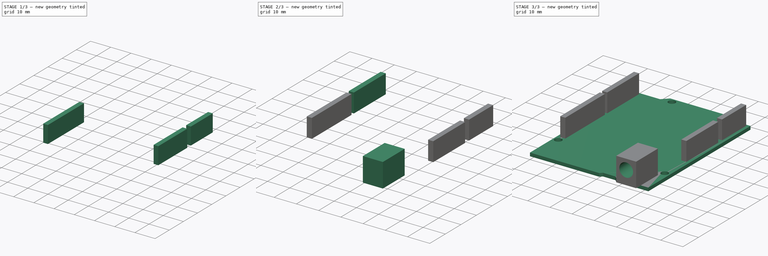
[diagram: build sequence overview — one tinted view per stage of 3, left to right]
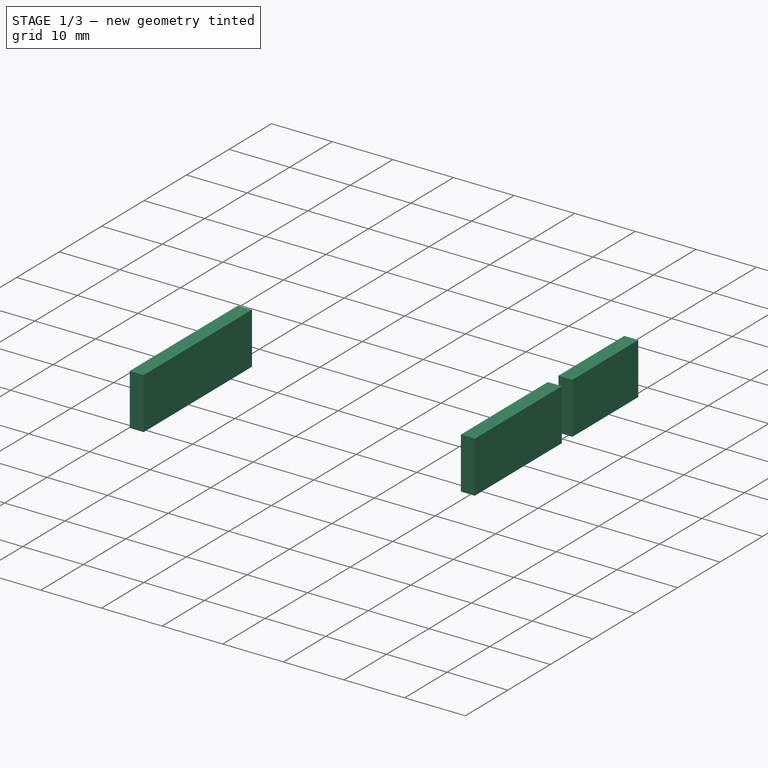
[diagram: stage 1 of 3 — iso view after this stage's code; geometry added in this stage tinted green]
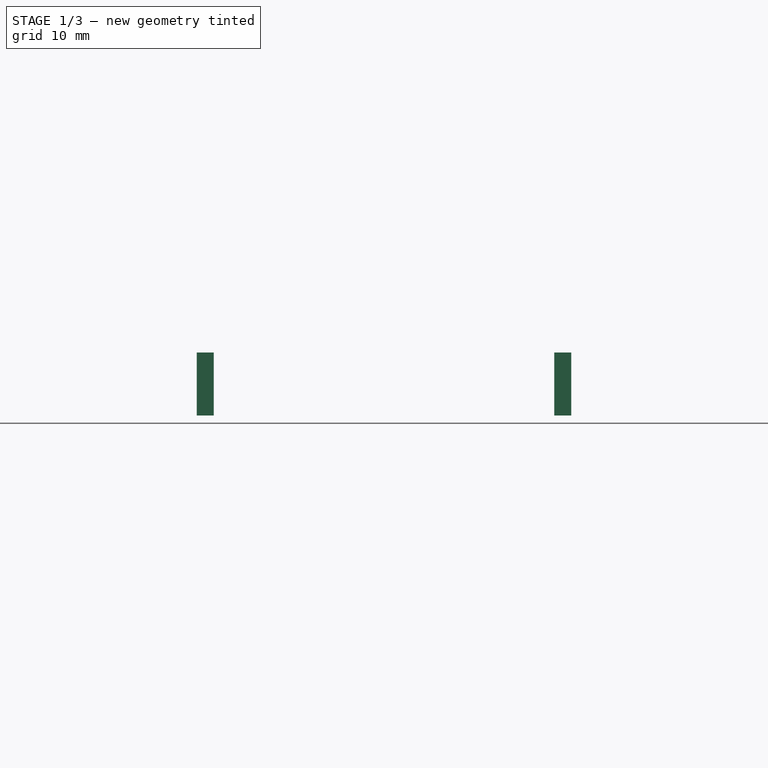
[diagram: stage 1 of 3 — front view after this stage's code; geometry added in this stage tinted green]
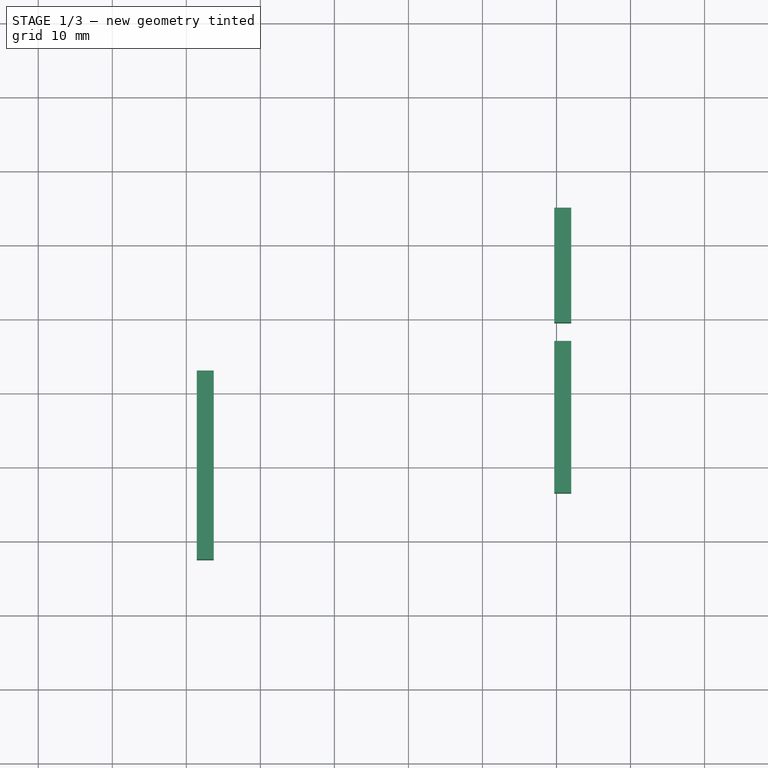
[diagram: stage 1 of 3 — top view after this stage's code; geometry added in this stage tinted green]
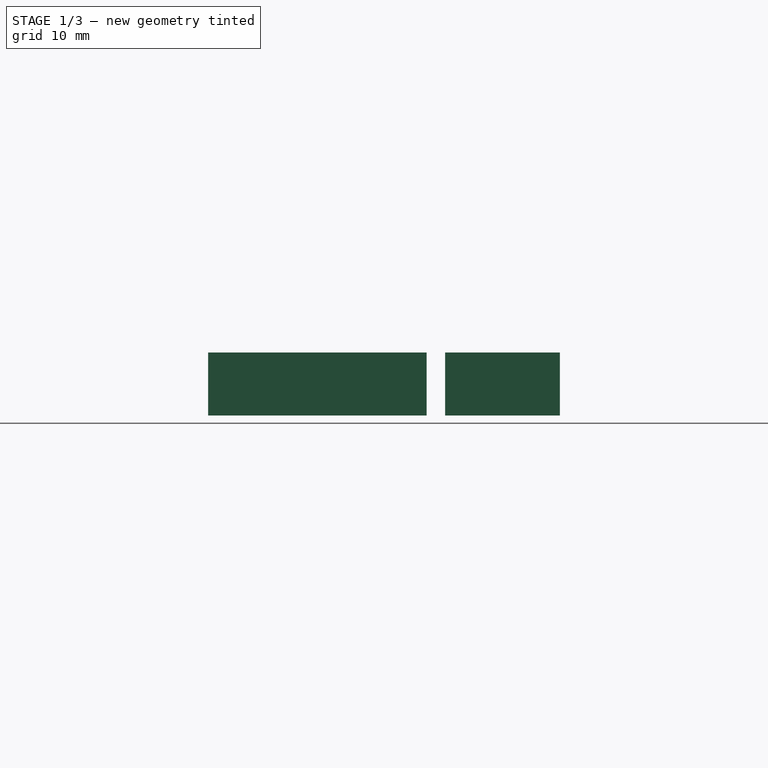
[diagram: stage 1 of 3 — right view after this stage's code; geometry added in this stage tinted green]
FCSTD DOCUMENT  (FreeCAD 0.19R24276 (Git))
Label: Adafruit_MetroM4
License: All rights reserved
LicenseURL: http://en.wikipedia.org/wiki/All_rights_reserved
objects: Sketcher::SketchObject×8, PartDesign::Pad×6, PartDesign::Body×6, PartDesign::Pocket×2, App::Part×1
note: 30 computed .brp shape members not serialized (recipe doc carries the construction recipe); baked Part::Feature solids carry a one-line shape summary decoded from their .brp

FEATURE [PartDesign::Body] Body002  label="Header1"
  Group = -> [Sketch004,Pad002]
  Origin = -> Origin003
  Tip = -> Pad002
FEATURE [Sketcher::SketchObject] Sketch005
  FullyConstrained = true
  MapMode = 5
  Support = -> [XY_Plane004]
  sketch-geometry (4):
    g0: LineSegment StartX=1.4 StartY=43 StartZ=0 EndX=3.7 EndY=43 EndZ=0
    g1: LineSegment StartX=3.7 StartY=43 StartZ=0 EndX=3.7 EndY=17.5 EndZ=0
    g2: LineSegment StartX=3.7 StartY=17.5 StartZ=0 EndX=1.4 EndY=17.5 EndZ=0
    g3: LineSegment StartX=1.4 StartY=17.5 StartZ=0 EndX=1.4 EndY=43 EndZ=0
  constraints (12):
    c: Coincident(g0,g1)
    c: Coincident(g1,g2)
    c: Coincident(g2,g3)
    c: Coincident(g3,g0)
    c: Horizontal(g0)
    c: Horizontal(g2)
    c: Vertical(g1)
    c: Vertical(g3)
    c: Distance(g0) = 2.3
    c: DistanceX(g-1,g0) = 3.7
    c: DistanceY(g-1,g0) = 43
    c: Distance(g3) = 25.5
FEATURE [PartDesign::Pad] Pad003
  Direction = (1,1,1)
  Length = 8.5
  Length2 = 100
  Profile = -> Sketch005
  Type = 0
FEATURE [PartDesign::Body] Body003  label="Header2"
  Group = -> [Sketch005,Pad003]
  Origin = -> Origin004
  Tip = -> Pad003
FEATURE [Sketcher::SketchObject] Sketch006
  FullyConstrained = true
  MapMode = 5
  Support = -> [XY_Plane005]
  sketch-geometry (4):
    g0: LineSegment StartX=49.7 StartY=65 StartZ=0 EndX=52 EndY=65 EndZ=0
    g1: LineSegment StartX=52 StartY=65 StartZ=0 EndX=52 EndY=49.5 EndZ=0
    g2: LineSegment StartX=52 StartY=49.5 StartZ=0 EndX=49.7 EndY=49.5 EndZ=0
    g3: LineSegment StartX=49.7 StartY=49.5 StartZ=0 EndX=49.7 EndY=65 EndZ=0
  constraints (12):
    c: Coincident(g0,g1)
    c: Coincident(g1,g2)
    c: Coincident(g2,g3)
    c: Coincident(g3,g0)
    c: Horizontal(g0)
    c: Horizontal(g2)
    c: Vertical(g1)
    c: Vertical(g3)
    c: Distance(g2) = 2.3
    c: Distance(g1) = 15.5
    c: DistanceY(g-1,g0) = 65
    c: DistanceX(g-1,g0) = 52
FEATURE [PartDesign::Pad] Pad004
  Direction = (1,1,1)
  Length = 8.5
  Length2 = 100
  Profile = -> Sketch006
  Type = 0
FEATURE [PartDesign::Body] Body004  label="Header3"
  Group = -> [Sketch006,Pad004]
  Origin = -> Origin005
  Tip = -> Pad004
FEATURE [Sketcher::SketchObject] Sketch007
  FullyConstrained = true
  MapMode = 5
  Support = -> [XY_Plane006]
  sketch-geometry (4):
    g0: LineSegment StartX=49.7 StartY=47 StartZ=0 EndX=52 EndY=47 EndZ=0
    g1: LineSegment StartX=52 StartY=47 StartZ=0 EndX=52 EndY=26.5 EndZ=0
    g2: LineSegment StartX=52 StartY=26.5 StartZ=0 EndX=49.7 EndY=26.5 EndZ=0
    g3: LineSegment StartX=49.7 StartY=26.5 StartZ=0 EndX=49.7 EndY=47 EndZ=0
  constraints (12):
    c: Coincident(g0,g1)
    c: Coincident(g1,g2)
    c: Coincident(g2,g3)
    c: Coincident(g3,g0)
    c: Horizontal(g0)
    c: Horizontal(g2)
    c: Vertical(g1)
    c: Vertical(g3)
    c: DistanceX(g0,g0) = 2.3
    c: DistanceY(g1,g0) = 20.5
    c: DistanceX(g-1,g0) = 52
    c: DistanceY(g-1,g0) = 47
FEATURE [PartDesign::Pad] Pad005
  Direction = (1,1,1)
  Length = 8.5
  Length2 = 100
  Profile = -> Sketch007
  Type = 0
FEATURE [PartDesign::Body] Body005  label="Header4"
  Group = -> [Sketch007,Pad005]
  Origin = -> Origin006
  Tip = -> Pad005
FEATURE [App::Part] Part  label="MetroM4"
  Group = -> [Body,Body001,Body002,Body003,Body004,Body005]
  Origin = -> Origin
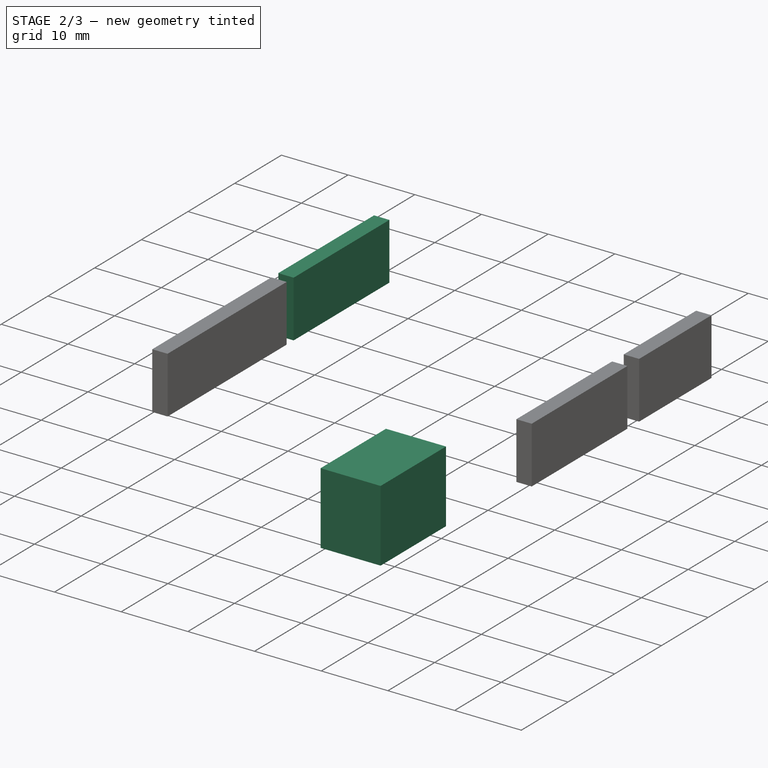
[diagram: stage 2 of 3 — iso view after this stage's code; geometry added in this stage tinted green]
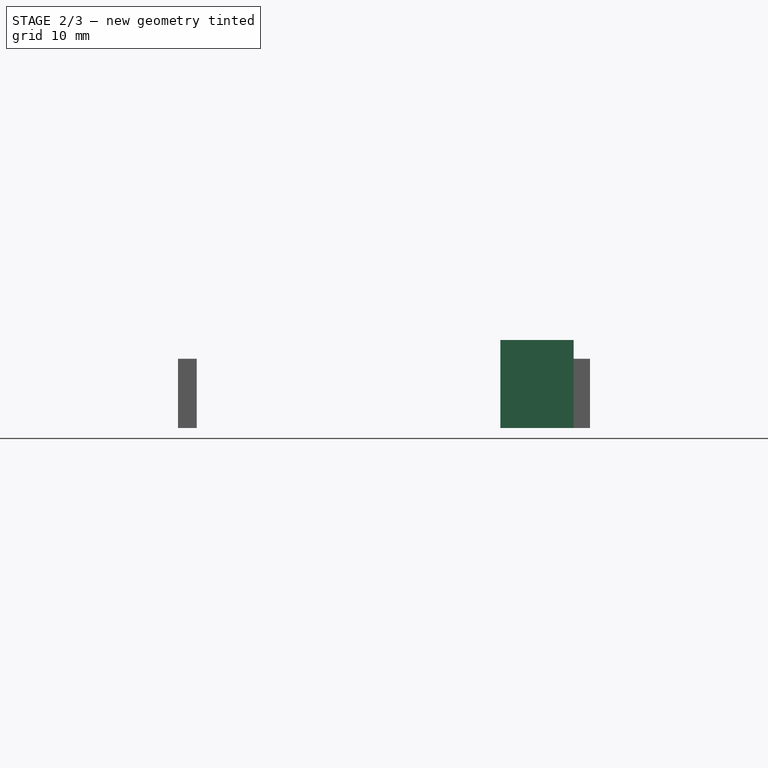
[diagram: stage 2 of 3 — front view after this stage's code; geometry added in this stage tinted green]
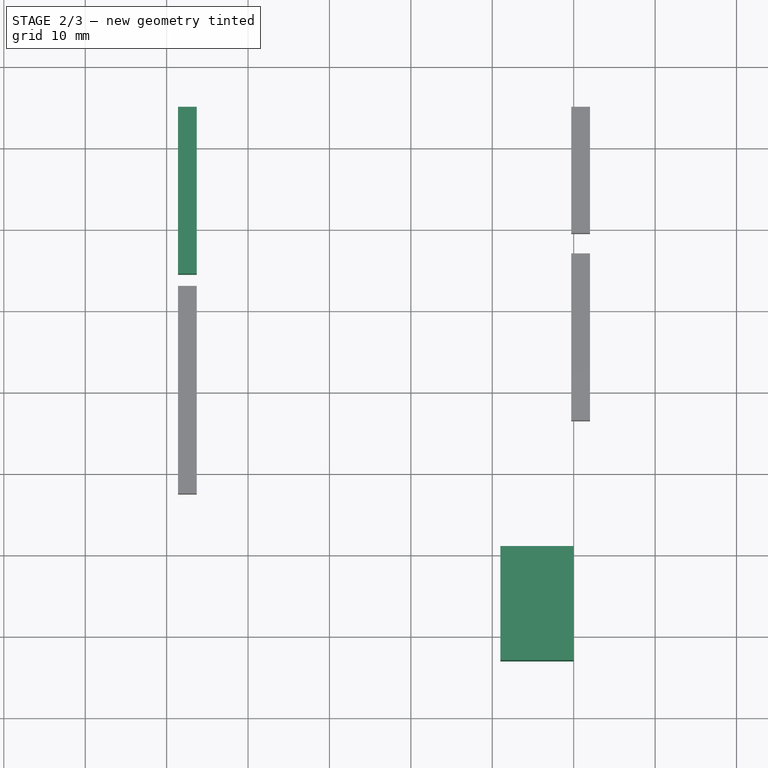
[diagram: stage 2 of 3 — top view after this stage's code; geometry added in this stage tinted green]
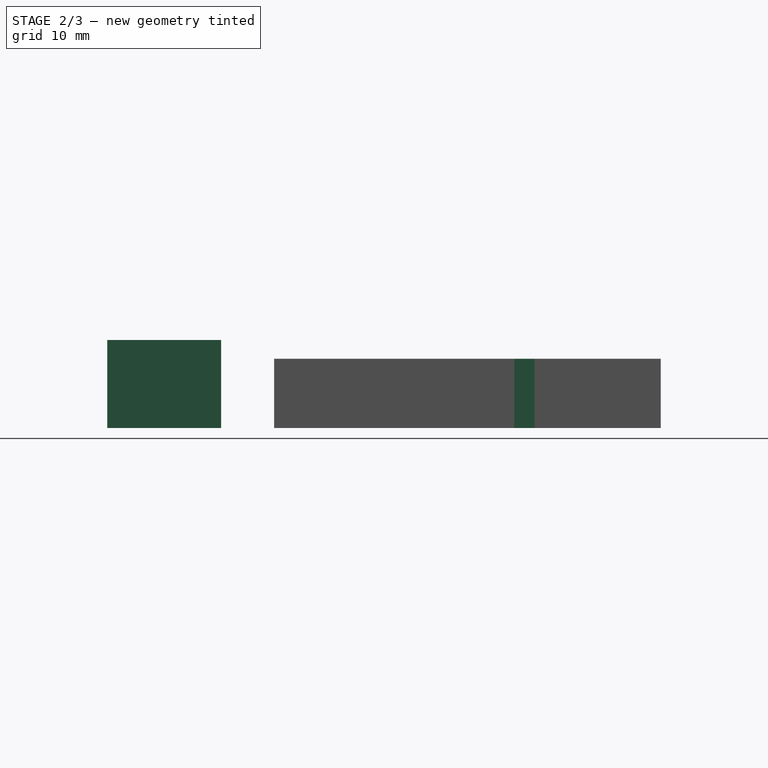
[diagram: stage 2 of 3 — right view after this stage's code; geometry added in this stage tinted green]
FEATURE [PartDesign::Body] Body  label="MainBoard"
  Group = -> [Sketch,Pad,Sketch001,Pocket]
  Origin = -> Origin001
  Tip = -> Pocket
FEATURE [Sketcher::SketchObject] Sketch002
  FullyConstrained = true
  MapMode = 5
  Support = -> [XY_Plane002]
  sketch-geometry (4):
    g0: LineSegment StartX=41 StartY=11 StartZ=0 EndX=50 EndY=11 EndZ=0
    g1: LineSegment StartX=50 StartY=11 StartZ=0 EndX=50 EndY=-3 EndZ=0
    g2: LineSegment StartX=50 StartY=-3 StartZ=0 EndX=41 EndY=-3 EndZ=0
    g3: LineSegment StartX=41 StartY=-3 StartZ=0 EndX=41 EndY=11 EndZ=0
  constraints (12):
    c: Coincident(g0,g1)
    c: Coincident(g1,g2)
    c: Coincident(g2,g3)
    c: Coincident(g3,g0)
    c: Horizontal(g0)
    c: Horizontal(g2)
    c: Vertical(g1)
    c: Vertical(g3)
    c: Distance(g1) = 14
    c: Distance(g0) = 9
    c: DistanceY(g2,g-1) = 3
    c: DistanceX(g-1,g1) = 50
FEATURE [PartDesign::Pad] Pad001
  Direction = (1,1,1)
  Length = 10.8
  Length2 = 100
  Profile = -> Sketch002
  Type = 0
FEATURE [PartDesign::Body] Body001  label="PowerBarrel"
  Group = -> [Sketch002,Pad001,Sketch003,Pocket001]
  Origin = -> Origin002
  Tip = -> Pocket001
FEATURE [Sketcher::SketchObject] Sketch004
  FullyConstrained = true
  MapMode = 5
  Support = -> [XY_Plane003]
  sketch-geometry (4):
    g0: LineSegment StartX=1.4 StartY=65 StartZ=0 EndX=3.7 EndY=65 EndZ=0
    g1: LineSegment StartX=3.7 StartY=65 StartZ=0 EndX=3.7 EndY=44.5 EndZ=0
    g2: LineSegment StartX=3.7 StartY=44.5 StartZ=0 EndX=1.4 EndY=44.5 EndZ=0
    g3: LineSegment StartX=1.4 StartY=44.5 StartZ=0 EndX=1.4 EndY=65 EndZ=0
  constraints (12):
    c: Coincident(g0,g1)
    c: Coincident(g1,g2)
    c: Coincident(g2,g3)
    c: Coincident(g3,g0)
    c: Horizontal(g0)
    c: Horizontal(g2)
    c: Vertical(g1)
    c: Vertical(g3)
    c: Distance(g0) = 2.3
    c: DistanceY(g-1,g0) = 65
    c: Distance(g3) = 20.5
    c: DistanceX(g-1,g0) = 3.7
FEATURE [PartDesign::Pad] Pad002
  Direction = (1,1,1)
  Length = 8.5
  Length2 = 100
  Profile = -> Sketch004
  Type = 0
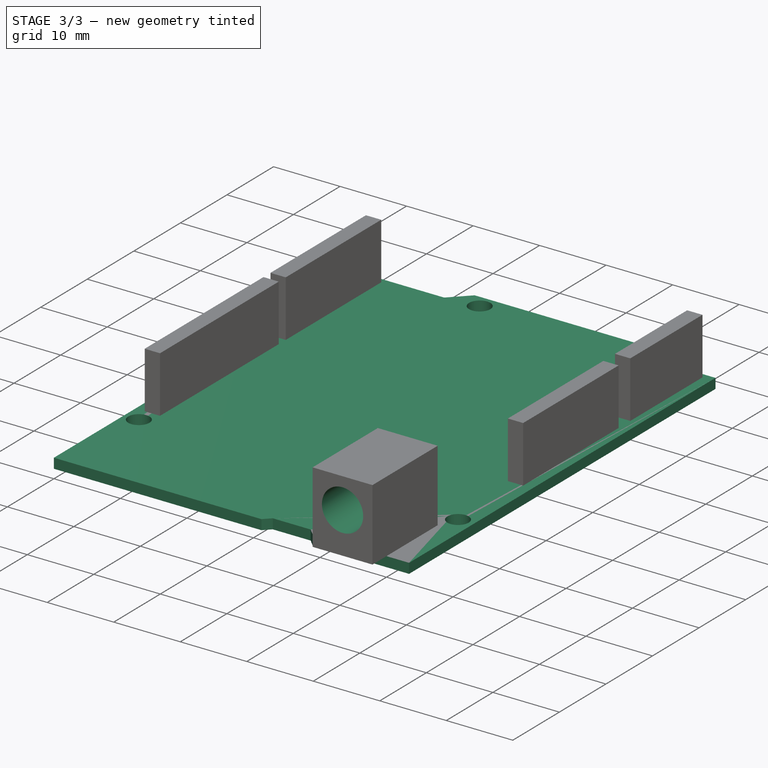
[diagram: stage 3 of 3 — iso view after this stage's code; geometry added in this stage tinted green]
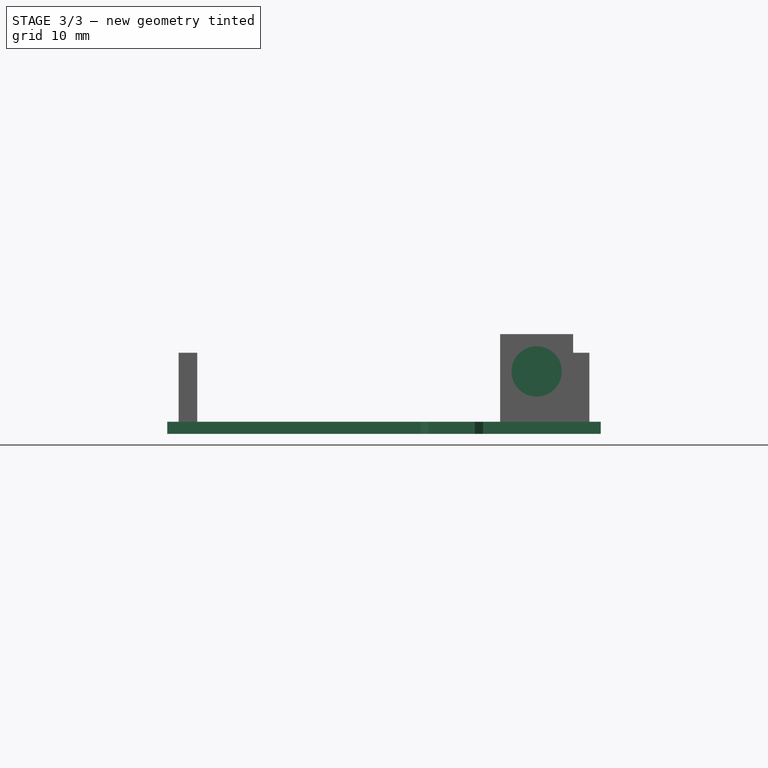
[diagram: stage 3 of 3 — front view after this stage's code; geometry added in this stage tinted green]
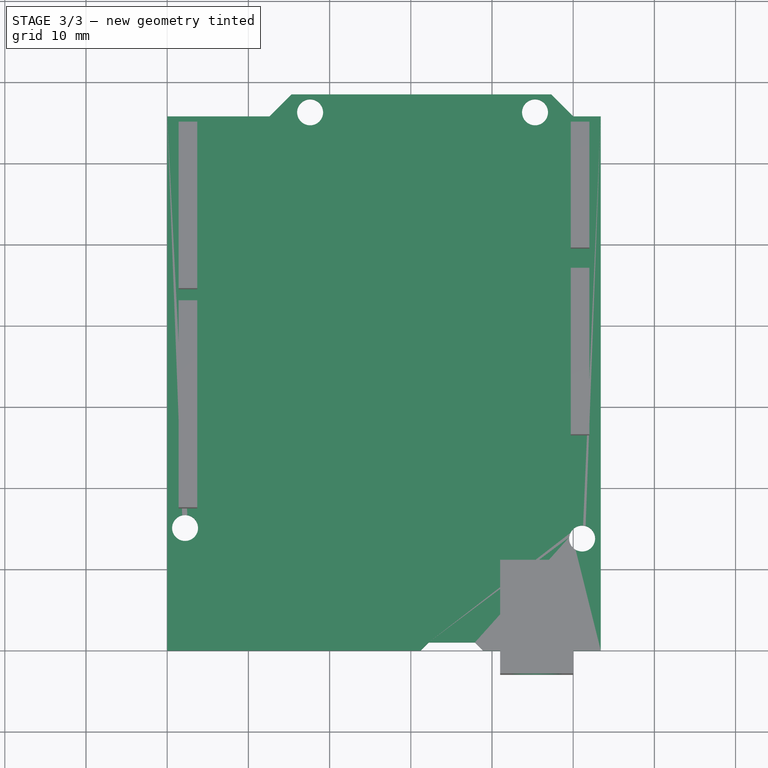
[diagram: stage 3 of 3 — top view after this stage's code; geometry added in this stage tinted green]
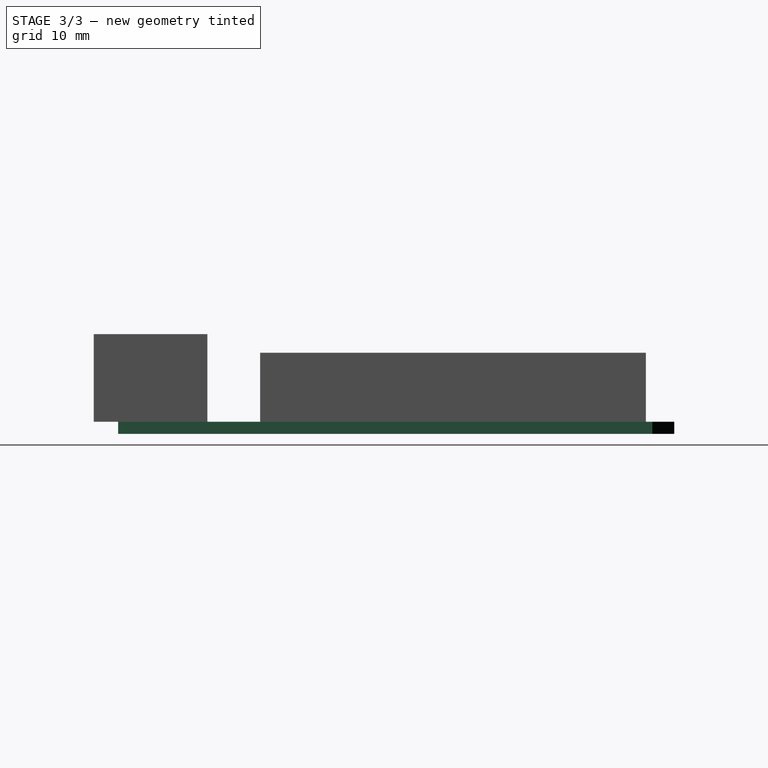
[diagram: stage 3 of 3 — right view after this stage's code; geometry added in this stage tinted green]
FEATURE [Sketcher::SketchObject] Sketch
  FullyConstrained = true
  MapMode = 5
  Support = -> [XY_Plane001]
  sketch-geometry (12):
    g0: LineSegment StartX=53.4 StartY=65.8 StartZ=0 EndX=53.4 EndY=0 EndZ=0
    g1: LineSegment StartX=0 StartY=0 StartZ=0 EndX=0 EndY=65.8 EndZ=0
    g2: LineSegment StartX=50 StartY=65.8 StartZ=0 EndX=47.3 EndY=68.5 EndZ=0
    g3: LineSegment StartX=47.3 StartY=68.5 StartZ=0 EndX=15.3 EndY=68.5 EndZ=0
    g4: LineSegment StartX=15.3 StartY=68.5 StartZ=0 EndX=12.6 EndY=65.8 EndZ=0
    g5: LineSegment StartX=0 StartY=65.8 StartZ=0 EndX=12.6 EndY=65.8 EndZ=0
    g6: LineSegment StartX=50 StartY=65.8 StartZ=0 EndX=53.4 EndY=65.8 EndZ=0
    g7: LineSegment StartX=31.2 StartY=0 StartZ=0 EndX=32.2 EndY=1 EndZ=0
    g8: LineSegment StartX=32.2 StartY=1 StartZ=0 EndX=37.9 EndY=1 EndZ=0
    g9: LineSegment StartX=37.9 StartY=1 StartZ=0 EndX=38.9 EndY=2e-16 EndZ=0
    g10: LineSegment StartX=0 StartY=0 StartZ=0 EndX=31.2 EndY=0 EndZ=0
    g11: LineSegment StartX=38.9 StartY=2e-16 StartZ=0 EndX=53.4 EndY=2e-16 EndZ=0
  constraints (36):
    c: Vertical(g0)
    c: Vertical(g1)
    c: Distance(g0) = 65.8
    c: Coincident(g3,g2)
    c: Horizontal(g3)
    c: Coincident(g4,g3)
    c: Equal(g4,g2)
    c: DistanceY(g0,g2) = 2.7
    c: Distance(g3) = 32
    c: Coincident(g5,g1)
    c: Coincident(g5,g4)
    c: Horizontal(g5)
    c: Coincident(g6,g2)
    c: Coincident(g6,g0)
    c: DistanceX(g1,g0) = 53.4
    c: Angle(g4,g5) = 2.35619
    c: Horizontal(g6)
    c: Angle(g6,g2) = 2.35619
    c: Coincident(g8,g7)
    c: Horizontal(g8)
    c: Coincident(g9,g8)
    c: Coincident(g10,g1)
    c: Coincident(g10,g7)
    c: Horizontal(g10)
    c: Coincident(g11,g9)
    c: Coincident(g11,g0)
    c: Horizontal(g11)
    c: Angle(g7,g10) = 2.35619
    c: Angle(g11,g9) = 2.35619
    c: Equal(g7,g9)
    c: DistanceX(g9,g0) = 14.5
    c: DistanceX(g7,g8) = 5.7
    c: DistanceY(g9,g8) = 1
    c: PointOnObject(g-1,g10)
    c: PointOnObject(g1,g-2)
    c: DistanceX(g1,g3) = 15.3
FEATURE [PartDesign::Pad] Pad
  Direction = (1,1,1)
  Length = 1.5
  Length2 = 100
  Profile = -> Sketch
  Reversed = true
  Type = 0
FEATURE [Sketcher::SketchObject] Sketch001
  FullyConstrained = true
  MapMode = 5
  Support = -> [XY_Plane001]
  sketch-geometry (5):
    g0: Circle CenterX=17.6 CenterY=66.3 CenterZ=0 NormalX=0 NormalY=0 NormalZ=1 AngleXU=0 Radius=1.6
    g1: Circle CenterX=45.3 CenterY=66.3 CenterZ=0 NormalX=0 NormalY=0 NormalZ=1 AngleXU=0 Radius=1.6
    g2: Circle CenterX=2.2 CenterY=15.1 CenterZ=0 NormalX=0 NormalY=0 NormalZ=1 AngleXU=0 Radius=1.6
    g3: Circle CenterX=51.1 CenterY=13.8 CenterZ=0 NormalX=0 NormalY=0 NormalZ=1 AngleXU=0 Radius=1.6
    g4: LineSegment StartX=17.6 StartY=66.3 StartZ=0 EndX=45.3 EndY=66.3 EndZ=0
  constraints (14):
    c: Equal(g0,g1)
    c: Equal(g3,g2)
    c: Diameter(g1) = 3.2
    c: Equal(g0,g2)
    c: Coincident(g4,g0)
    c: Coincident(g4,g1)
    c: Horizontal(g4)
    c: DistanceY(g-1,g3) = 13.8
    c: DistanceY(g-1,g2) = 15.1
    c: DistanceX(g-1,g3) = 51.1
    c: DistanceX(g-1,g2) = 2.2
    c: DistanceY(g-1,g0) = 66.3
    c: DistanceX(g-1,g0) = 17.6
    c: DistanceX(g0,g1) = 27.7
FEATURE [PartDesign::Pocket] Pocket
  BaseFeature = -> Pad
  Length = 5
  Length2 = 100
  Profile = -> Sketch001
  Type = 1
FEATURE [Sketcher::SketchObject] Sketch003
  FullyConstrained = true
  MapMode = 5
  Placement = pos=(0,-3,0) rot=(1,0,0;1.5708rad)
  Support = -> [Pad001]
  sketch-geometry (1):
    g0: Circle CenterX=45.5 CenterY=6.2 CenterZ=0 NormalX=0 NormalY=0 NormalZ=1 AngleXU=0 Radius=3.1
  constraints (3):
    c: Diameter(g0) = 6.2
    c: DistanceX(g-1,g0) = 45.5
    c: DistanceY(g-1,g0) = 6.2
FEATURE [PartDesign::Pocket] Pocket001
  BaseFeature = -> Pad001
  Length = 10
  Length2 = 100
  Profile = -> Sketch003
  Type = 0
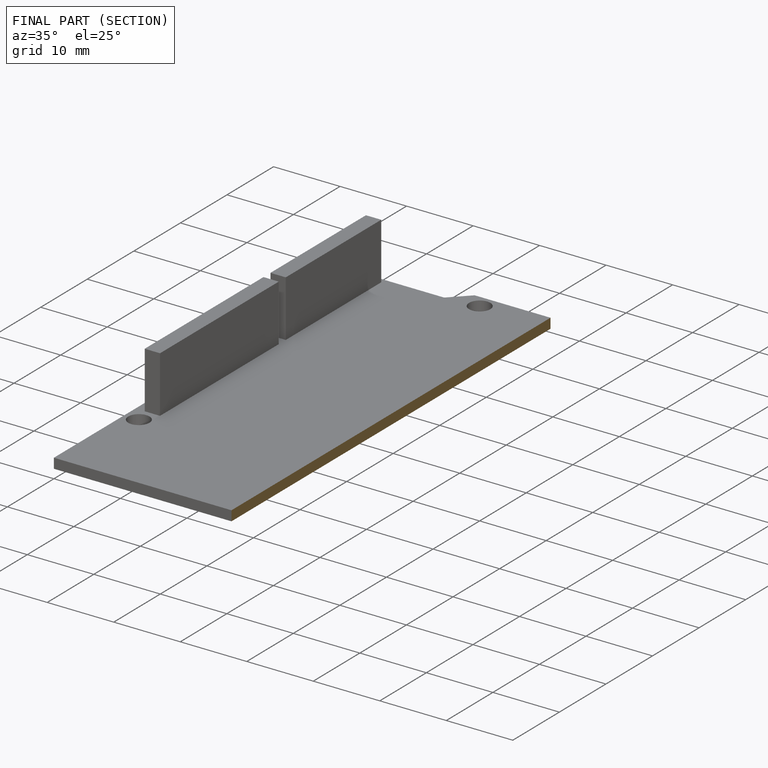
[diagram: finished part — half-section view (interior)]
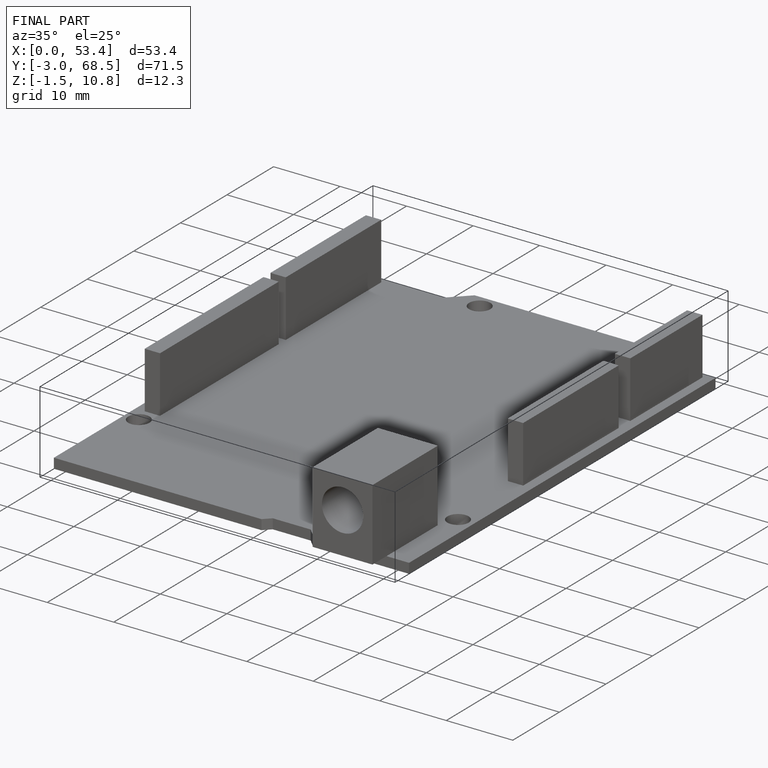
[diagram: finished part — iso view with bounding-box wireframe]
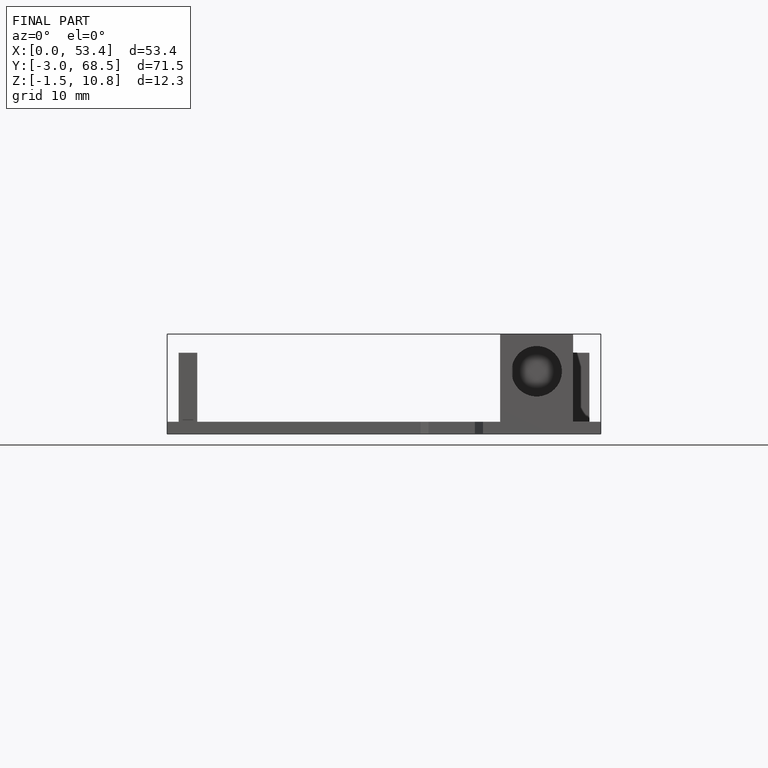
[diagram: finished part — front view with bounding-box wireframe]
